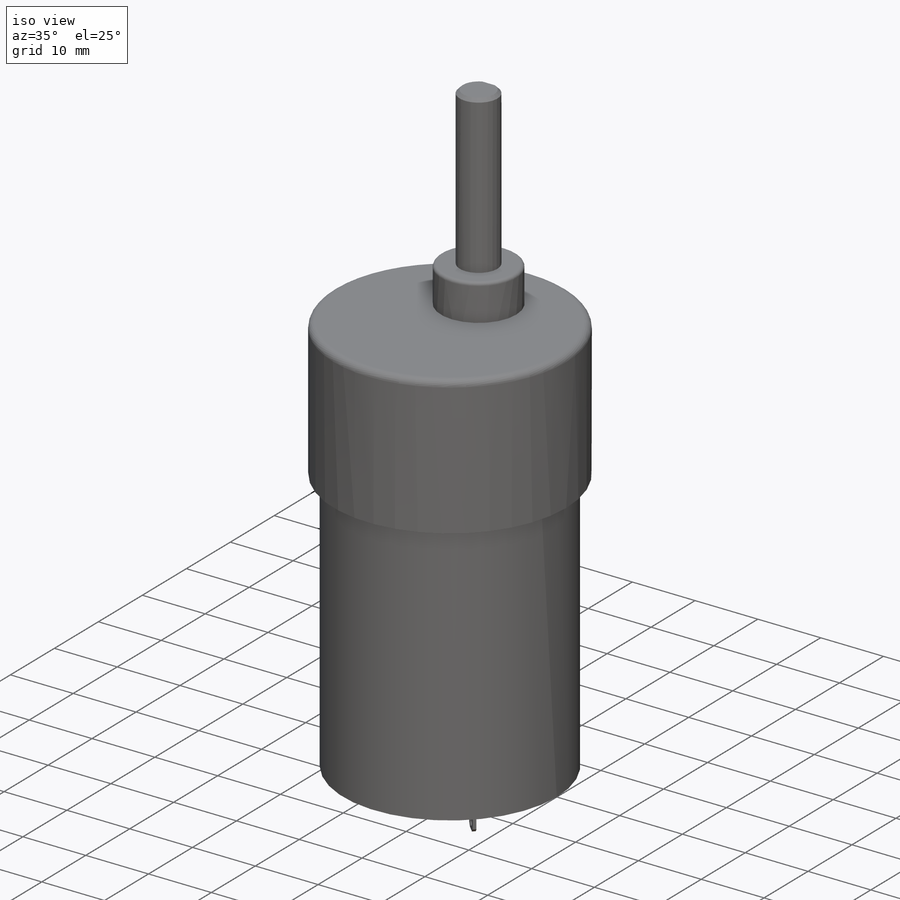
[diagram: iso view]
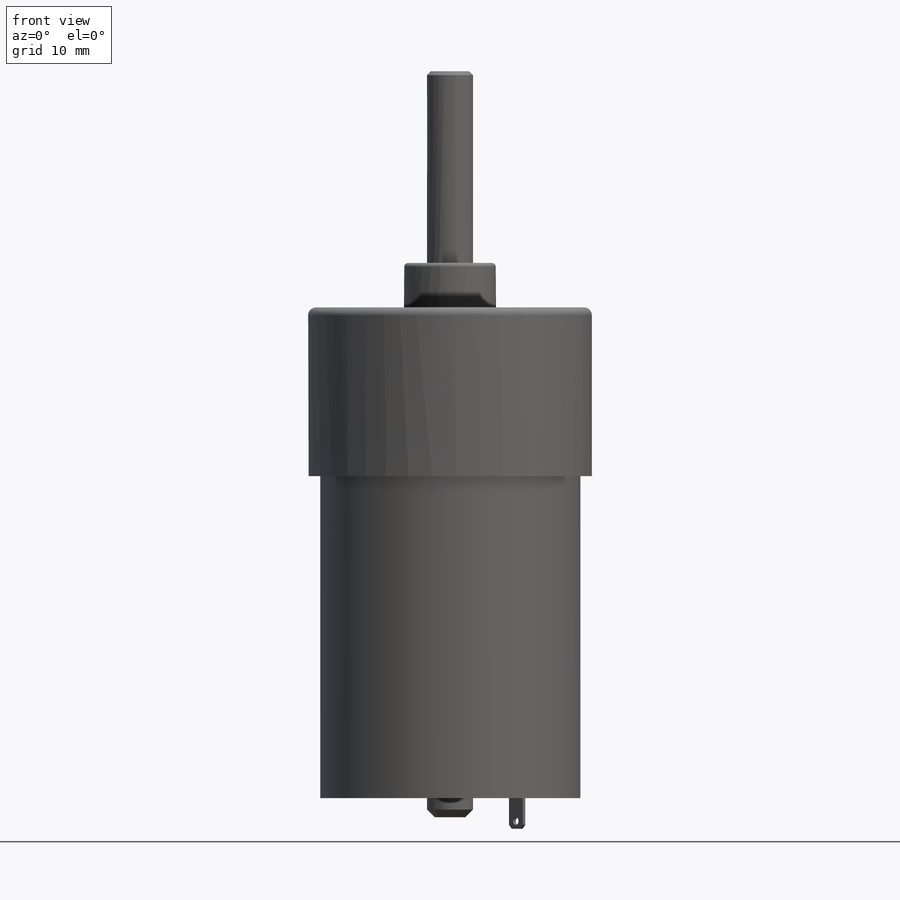
[diagram: front view]
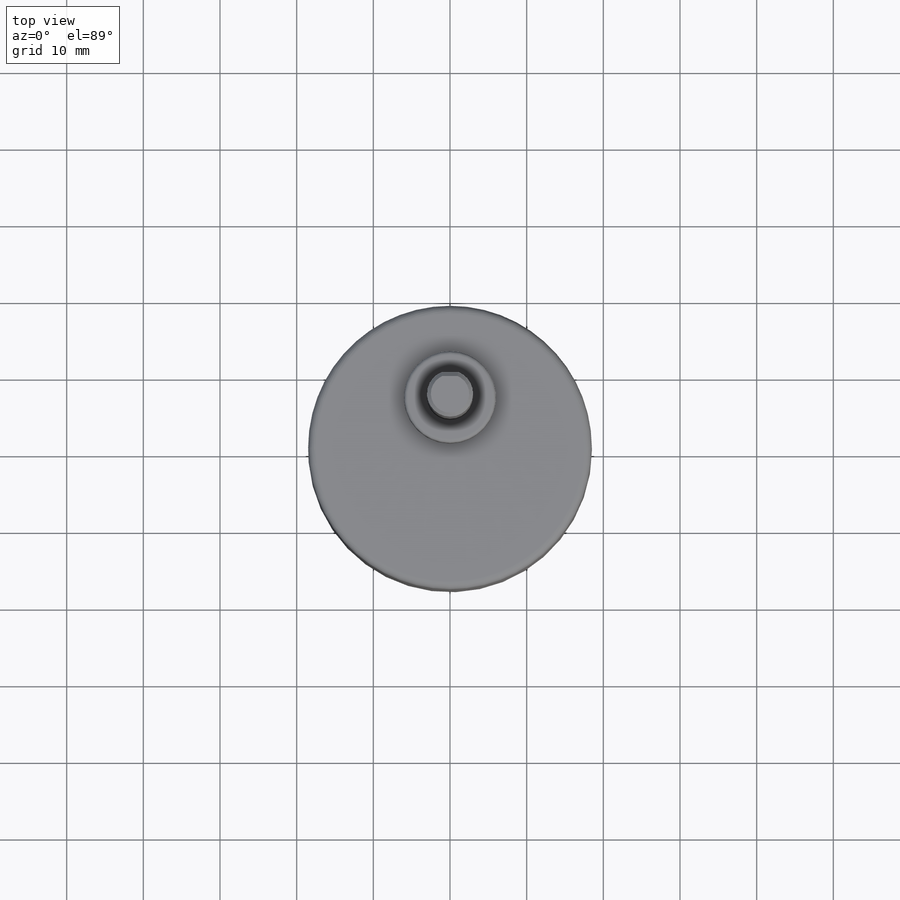
[diagram: top view]
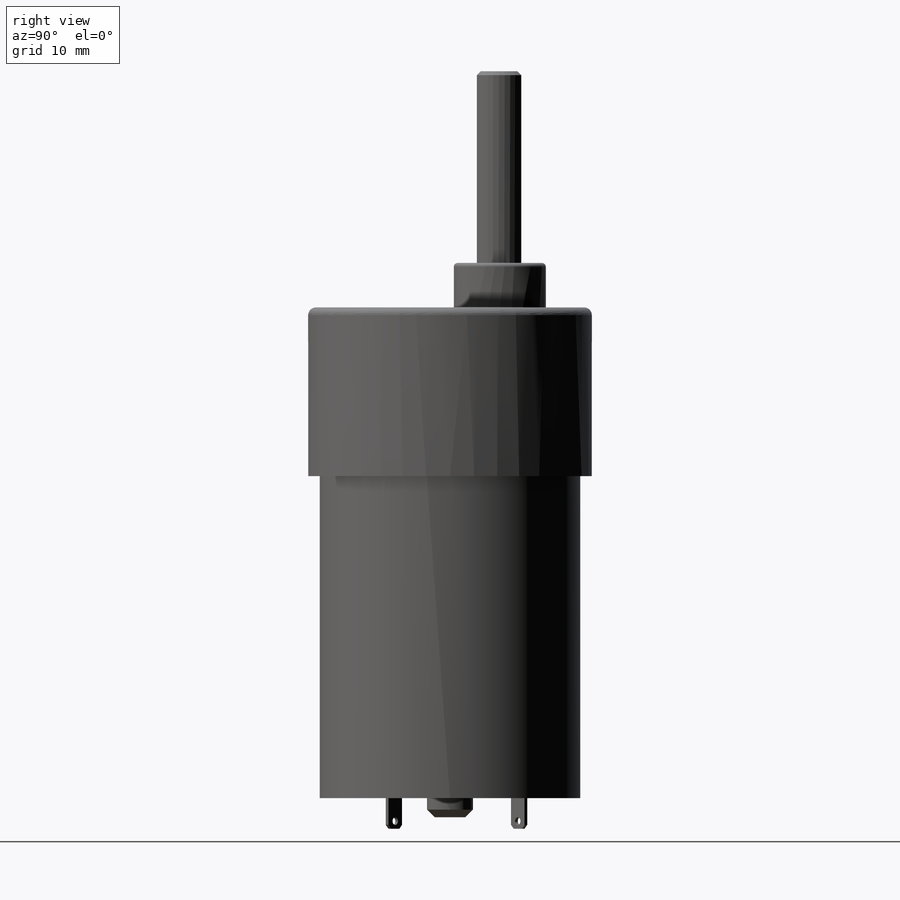
[diagram: right view]
SOLIDWORKS PART (.sldprt)
format: sldprt  version: not decoded by parser v0  size: 333,824 bytes
history: native  units: mm
features: sketch x6, cut_extrude x3, revolve x2, chamfer x2, fillet x2, material x1, extrude x1 (+13 scaffold rows collapsed)
feature tree (30):
  scaffold x13  (default folders/planes/origin — collapsed)
  material  "Alloy Steel"
  sketch  "Sketch1"  dims[c1.D1=6.0mm c1.D2=10.0mm c1.D3=33.0mm c1.D4=34.0mm c1.D5=37.0mm c1.D6=66.5mm c1.D7=22.0mm c1.D8=1.0mm c1.D9=2.5mm c1.D10=22.0mm c1.D11=66.5mm c2.D1=0.0mm]
  revolve  "Revolve1"  Angle=360deg
  sketch  "Sketch2"  dims[c1.D3=24.5mm c2.D3=90.0deg c3.D3=~5.797973mm c3.D1=6.0mm c3.D2=12.0mm c4.D3=30.8mm c4.D4=5.8mm c4.D5=6.5mm c4.D1=0.0mm c4.D2=0.0mm]
  revolve  "Revolve2"  Angle=360deg
  sketch  "Sketch3"  dims[c1.D1=0.5mm c1.D2=2.5mm c1.D3=0.5mm c1.D4=2.5mm c2.D3=~1.767767mm c3.D3=90.0deg c3.D4=~7.878537mm c3.D5=~14.565061mm c3.D6=~6.432353mm c3.D7=~14.565061mm c4.D7=45.0deg c4.D1=0.0mm c4.D2=0.0mm]
  extrude  "Extrude1"  Depth=5mm
  sketch  "Sketch4"  dims[D1=1.0mm D2=1.0mm]
  cut_extrude  "Cut-Extrude1"  [1 undecoded]
  sketch  "Sketch5"  dims[D1=1.0mm D2=1.0mm D3=~1.002135mm]
  cut_extrude  "Cut-Extrude2"  [1 undecoded]
  sketch  "Sketch6"  dims[D1=6.0mm D2=~2.164576mm]
  cut_extrude  "Cut-Extrude3"  [1 undecoded]
  chamfer  "Chamfer1"  Distance=1mm Angle=45deg
  chamfer  "Chamfer2"  Distance=0.5mm Angle=45deg
  fillet  "Fillet1"  Radius=0.5mm
  fillet  "Fillet2"  Radius=1mm
decode coverage: 13 of 16 modeling features carry decoded parameters
note: ~ marks probable driven/reference dimensions
note: 3 parameter values undecoded
summary: no parameter record found for 3 features
note: suppression state not decoded; provenance and decode notes live in map.json
